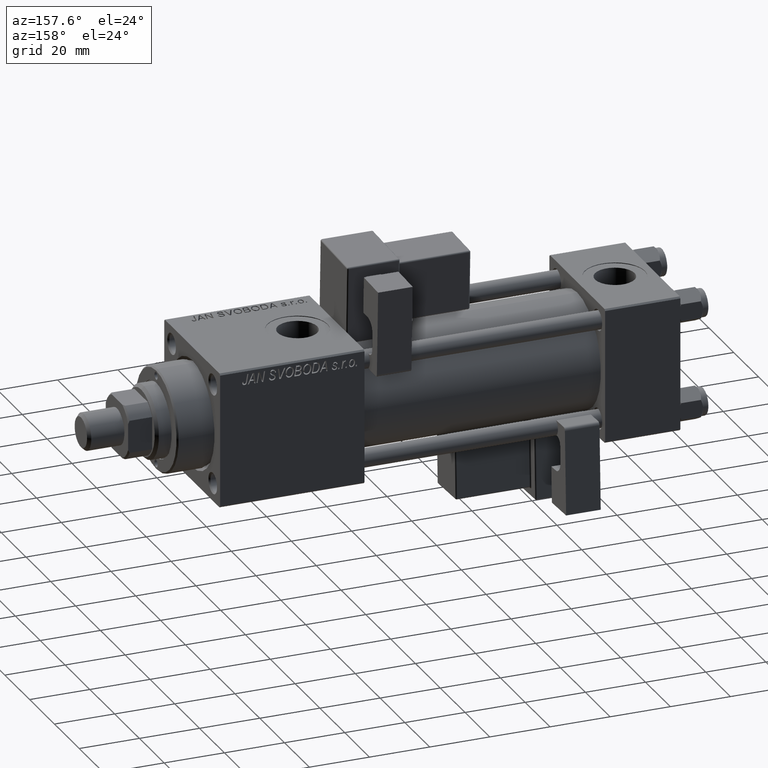
[diagram: clean part render]
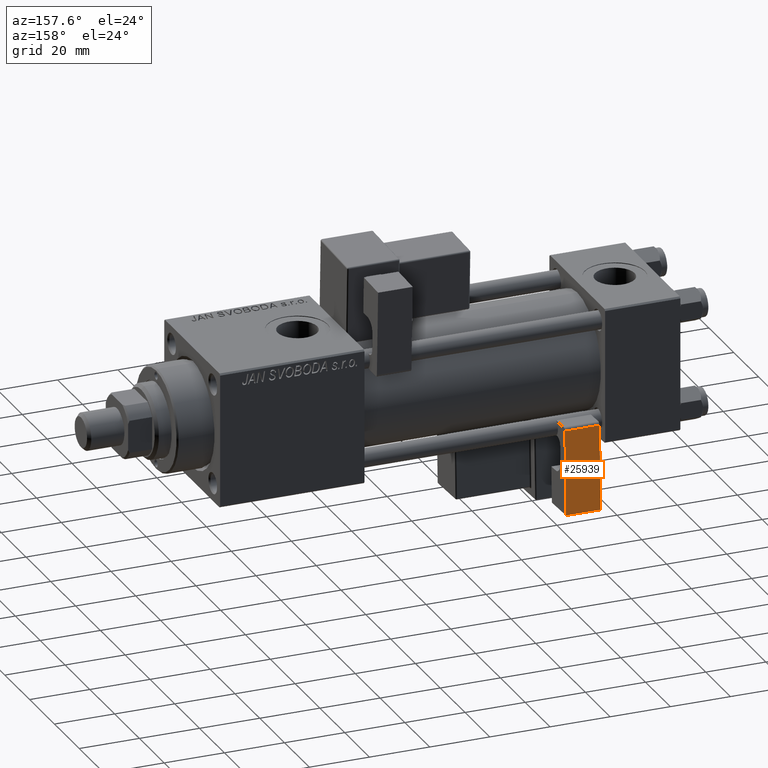
[diagram: same view with one face highlighted and labeled with its STEP entity id]
A machine part, auxiliary view. The second image highlights one B-rep face of the part: STEP entity #25939.
In plain terms, the highlighted planar face has unit normal (0, -0.9994, -0.0353).
Its self-contained STEP definition (entity closure, byte-faithful):
#289 = ORIENTED_EDGE ( 'NONE', *, *, #1872, .T. ) ;
#877 = DIRECTION ( 'NONE',  ( -0.000000000000000000, -0.000000000000000000, -1.000000000000000000 ) ) ;
#1872 = EDGE_CURVE ( 'NONE', #52935, #21253, #19728, .T. ) ;
#1987 = VERTEX_POINT ( 'NONE', #20772 ) ;
#2751 = DIRECTION ( 'NONE',  ( 1.508455196501571183E-16, -1.000000000000000000, 0.000000000000000000 ) ) ;
#2951 = CARTESIAN_POINT ( 'NONE',  ( -5.750000000000000000, 5.750000000000000000, 28.00000000000000000 ) ) ;
#3628 = VECTOR ( 'NONE', #18889, 1000.000000000000000 ) ;
#10908 = DIRECTION ( 'NONE',  ( 1.000000000000000000, 1.508455196501571183E-16, 0.000000000000000000 ) ) ;
#11744 = AXIS2_PLACEMENT_3D ( 'NONE', #18821, #2751, #10908 ) ;
#13411 = VECTOR ( 'NONE', #33654, 1000.000000000000000 ) ;
#17756 = ORIENTED_EDGE ( 'NONE', *, *, #20724, .T. ) ;
#17772 = ORIENTED_EDGE ( 'NONE', *, *, #42434, .T. ) ;
#17797 = LINE ( 'NONE', #34383, #3628 ) ;
#17876 = CARTESIAN_POINT ( 'NONE',  ( -5.750000000000000000, 5.750000000000000000, 0.000000000000000000 ) ) ;
#18278 = PLANE ( 'NONE',  #11744 ) ;
#18821 = CARTESIAN_POINT ( 'NONE',  ( -5.750000000000000000, 5.750000000000000000, 12.00000000000000000 ) ) ;
#18889 = DIRECTION ( 'NONE',  ( -0.000000000000000000, -0.000000000000000000, -1.000000000000000000 ) ) ;
#19728 = LINE ( 'NONE', #36309, #33435 ) ;
#20724 = EDGE_CURVE ( 'NONE', #33299, #1987, #43162, .T. ) ;
#20772 = CARTESIAN_POINT ( 'NONE',  ( -5.750000000000000000, 5.750000000000000000, 0.000000000000000000 ) ) ;
#21253 = VERTEX_POINT ( 'NONE', #41096 ) ;
#22901 = FACE_OUTER_BOUND ( 'NONE', #46978, .T. ) ;
#25939 = ADVANCED_FACE ( 'NONE', ( #22901 ), #18278, .F. ) ;
#33299 = VERTEX_POINT ( 'NONE', #40542 ) ;
#33435 = VECTOR ( 'NONE', #52870, 1000.000000000000000 ) ;
#33654 = DIRECTION ( 'NONE',  ( -1.000000000000000000, -1.508455196501571429E-16, -0.000000000000000000 ) ) ;
#34383 = CARTESIAN_POINT ( 'NONE',  ( -5.750000000000000000, 5.750000000000000000, 12.00000000000000000 ) ) ;
#36309 = CARTESIAN_POINT ( 'NONE',  ( -5.750000000000000000, 5.750000000000000000, 28.00000000000000000 ) ) ;
#38659 = ORIENTED_EDGE ( 'NONE', *, *, #53600, .F. ) ;
#40542 = CARTESIAN_POINT ( 'NONE',  ( 5.750000000000000000, 5.750000000000001776, 0.000000000000000000 ) ) ;
#41096 = CARTESIAN_POINT ( 'NONE',  ( 5.750000000000000000, 5.750000000000001776, 28.00000000000000000 ) ) ;
#41163 = LINE ( 'NONE', #53642, #43276 ) ;
#42434 = EDGE_CURVE ( 'NONE', #21253, #33299, #41163, .T. ) ;
#43162 = LINE ( 'NONE', #17876, #13411 ) ;
#43276 = VECTOR ( 'NONE', #877, 1000.000000000000000 ) ;
#46978 = EDGE_LOOP ( 'NONE', ( #38659, #289, #17772, #17756 ) ) ;
#52870 = DIRECTION ( 'NONE',  ( 1.000000000000000000, 1.508455196501571183E-16, -0.000000000000000000 ) ) ;
#52935 = VERTEX_POINT ( 'NONE', #2951 ) ;
#53600 = EDGE_CURVE ( 'NONE', #52935, #1987, #17797, .T. ) ;
#53642 = CARTESIAN_POINT ( 'NONE',  ( 5.750000000000000000, 5.750000000000001776, 12.00000000000000000 ) ) ;